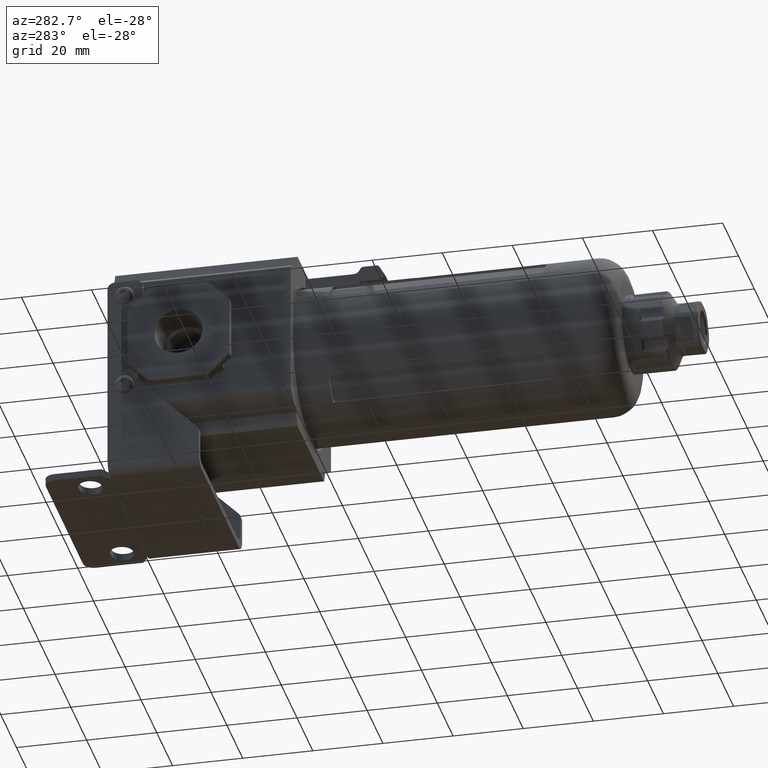
[diagram: clean part render]
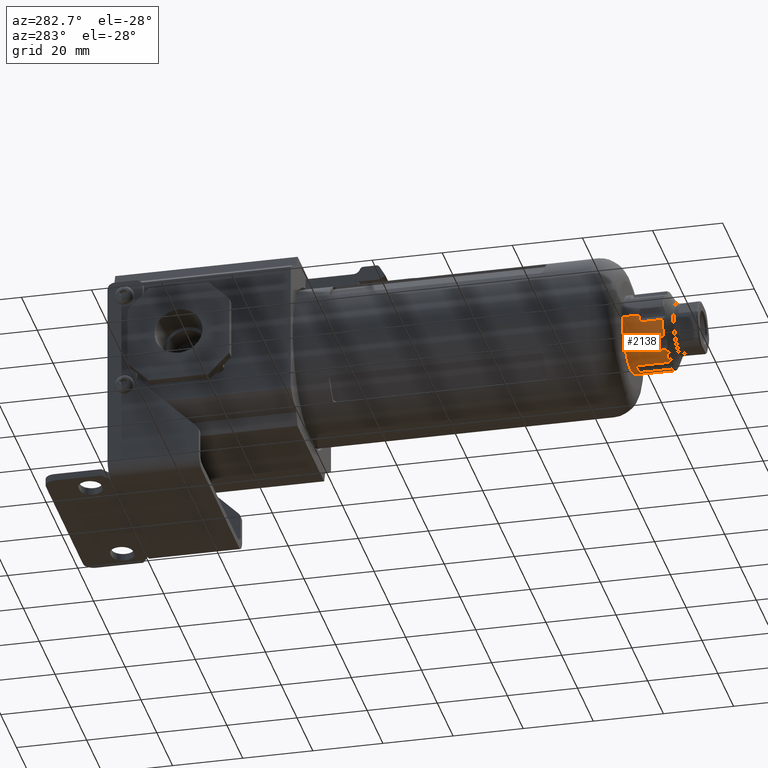
[diagram: same view with one face highlighted and labeled with its STEP entity id]
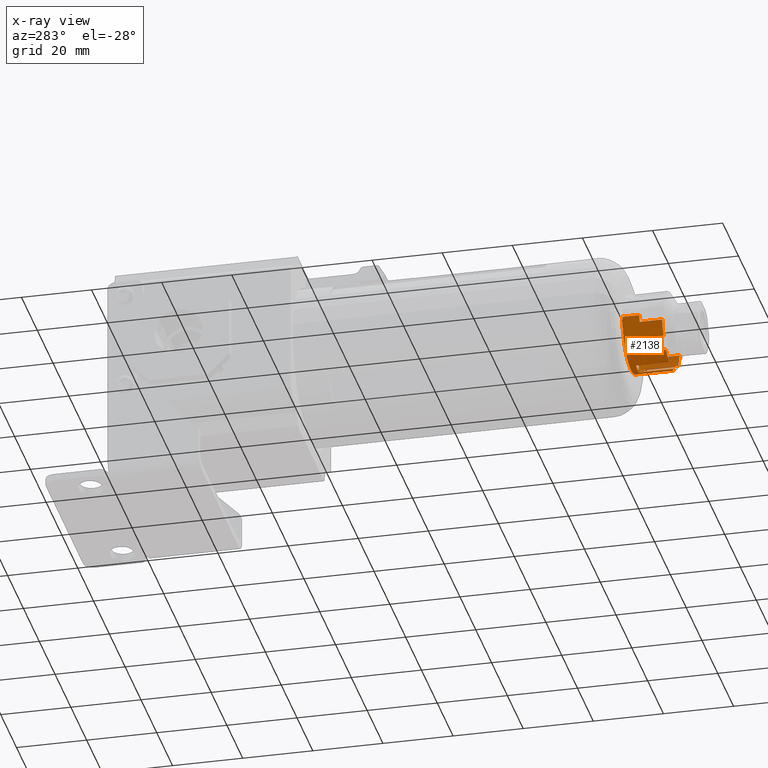
[diagram: x-ray of the same camera — body ghosted, the highlighted face saturated]
A machine part, auxiliary view. The second image highlights one B-rep face of the part: STEP entity #2138.
The next image is the same camera in x-ray: the body ghosted, the highlighted face saturated — about 0% of this face is hidden behind the body in this view.
In plain terms, the highlighted cylindrical surface (partial cylindrical patch) has radius 11.12 mm, axis along (-0, 1, 0).
Its self-contained STEP definition (entity closure, byte-faithful):
#53 = EDGE_CURVE ( 'NONE', #3982, #561, #631, .T. ) ;
#59 = VECTOR ( 'NONE', #7858, 1000.000000000000000 ) ;
#127 = ORIENTED_EDGE ( 'NONE', *, *, #9046, .T. ) ;
#156 = EDGE_CURVE ( 'NONE', #10337, #11940, #9162, .T. ) ;
#169 = CIRCLE ( 'NONE', #865, 11.11999999999999900 ) ;
#241 = EDGE_CURVE ( 'NONE', #2951, #8654, #5769, .T. ) ;
#269 = CARTESIAN_POINT ( 'NONE',  ( -11.11999999999998100, -127.2000000000000000, 0.0000000000000000000 ) ) ;
#280 = CARTESIAN_POINT ( 'NONE',  ( -2.052544532346916500, -124.2000000000000200, -10.92892771239397100 ) ) ;
#281 = DIRECTION ( 'NONE',  ( 1.000000000000000000, 0.0000000000000000000, 0.0000000000000000000 ) ) ;
#452 = CARTESIAN_POINT ( 'NONE',  ( 1.730641773680390700E-014, -127.1999999999999700, 0.0000000000000000000 ) ) ;
#481 = DIRECTION ( 'NONE',  ( -1.360567432138652400E-016, 1.000000000000000000, 0.0000000000000000000 ) ) ;
#540 = DIRECTION ( 'NONE',  ( -1.360567432138672300E-016, 1.000000000000000000, 0.0000000000000000000 ) ) ;
#561 = VERTEX_POINT ( 'NONE', #2896 ) ;
#573 = DIRECTION ( 'NONE',  ( -1.360567432138666200E-016, 1.000000000000000000, 0.0000000000000000000 ) ) ;
#631 = CIRCLE ( 'NONE', #6231, 11.11999999999999900 ) ;
#767 = CARTESIAN_POINT ( 'NONE',  ( -9.179287054041202200, -127.2000000000000000, -6.276550739021532300 ) ) ;
#802 = ORIENTED_EDGE ( 'NONE', *, *, #6599, .T. ) ;
#831 = EDGE_CURVE ( 'NONE', #12042, #11940, #169, .T. ) ;
#865 = AXIS2_PLACEMENT_3D ( 'NONE', #6842, #1221, #7777 ) ;
#1221 = DIRECTION ( 'NONE',  ( -6.802837160693361600E-017, 1.000000000000000000, 0.0000000000000000000 ) ) ;
#1401 = ORIENTED_EDGE ( 'NONE', *, *, #7861, .T. ) ;
#1482 = DIRECTION ( 'NONE',  ( -1.000000000000000000, 0.0000000000000000000, 0.0000000000000000000 ) ) ;
#1655 = VECTOR ( 'NONE', #6470, 1000.000000000000000 ) ;
#1658 = VERTEX_POINT ( 'NONE', #7301 ) ;
#1682 = AXIS2_PLACEMENT_3D ( 'NONE', #1908, #8489, #2863 ) ;
#1736 = ORIENTED_EDGE ( 'NONE', *, *, #6694, .T. ) ;
#1766 = CARTESIAN_POINT ( 'NONE',  ( -6.276550739021455900, -133.6693553667117000, -9.179287054041232400 ) ) ;
#1769 = CIRCLE ( 'NONE', #1682, 11.11999999999999900 ) ;
#1867 = CARTESIAN_POINT ( 'NONE',  ( 1.689824750716231000E-014, -124.2000000000000200, 0.0000000000000000000 ) ) ;
#1908 = CARTESIAN_POINT ( 'NONE',  ( 1.663973969505596400E-014, -122.3000000000000100, 0.0000000000000000000 ) ) ;
#2056 = CARTESIAN_POINT ( 'NONE',  ( 11.12000000000001700, -127.1999999999999700, 1.361807240651856700E-015 ) ) ;
#2125 = ORIENTED_EDGE ( 'NONE', *, *, #2591, .T. ) ;
#2138 = ADVANCED_FACE ( 'NONE', ( #10852 ), #7419, .T. ) ;
#2204 = DIRECTION ( 'NONE',  ( -6.802837160693361600E-017, 1.000000000000000000, 0.0000000000000000000 ) ) ;
#2277 = CARTESIAN_POINT ( 'NONE',  ( 6.276550739021563400, -124.1999999999999700, -9.179287054041180800 ) ) ;
#2315 = VERTEX_POINT ( 'NONE', #7599 ) ;
#2327 = VERTEX_POINT ( 'NONE', #8563 ) ;
#2395 = LINE ( 'NONE', #9584, #11836 ) ;
#2423 = CARTESIAN_POINT ( 'NONE',  ( 10.92892771239399300, -133.6693553667117000, -2.052544532346801900 ) ) ;
#2591 = EDGE_CURVE ( 'NONE', #4563, #2327, #7728, .T. ) ;
#2810 = DIRECTION ( 'NONE',  ( 1.000000000000000000, 0.0000000000000000000, 0.0000000000000000000 ) ) ;
#2863 = DIRECTION ( 'NONE',  ( -1.000000000000000000, 0.0000000000000000000, 0.0000000000000000000 ) ) ;
#2896 = CARTESIAN_POINT ( 'NONE',  ( 10.92892771239399300, -127.1999999999999700, -2.052544532346801900 ) ) ;
#2951 = VERTEX_POINT ( 'NONE', #767 ) ;
#2994 = DIRECTION ( 'NONE',  ( -1.360567432138666200E-016, 1.000000000000000000, 0.0000000000000000000 ) ) ;
#3041 = DIRECTION ( 'NONE',  ( -1.360567432138714000E-016, 1.000000000000000000, 0.0000000000000000000 ) ) ;
#3108 = VECTOR ( 'NONE', #12221, 1000.000000000000000 ) ;
#3137 = CIRCLE ( 'NONE', #6438, 11.11999999999999900 ) ;
#3165 = CIRCLE ( 'NONE', #11005, 11.11999999999999900 ) ;
#3197 = ORIENTED_EDGE ( 'NONE', *, *, #53, .T. ) ;
#3271 = VECTOR ( 'NONE', #5219, 1000.000000000000000 ) ;
#3290 = CARTESIAN_POINT ( 'NONE',  ( -6.276550739021455900, -127.2000000000000000, -9.179287054041232400 ) ) ;
#3304 = EDGE_CURVE ( 'NONE', #11257, #9175, #8281, .T. ) ;
#3408 = VECTOR ( 'NONE', #9707, 1000.000000000000000 ) ;
#3484 = AXIS2_PLACEMENT_3D ( 'NONE', #10873, #540, #1482 ) ;
#3570 = CARTESIAN_POINT ( 'NONE',  ( 1.818661715869186000E-014, -133.6693553667117000, 0.0000000000000000000 ) ) ;
#3584 = VERTEX_POINT ( 'NONE', #280 ) ;
#3623 = VERTEX_POINT ( 'NONE', #2277 ) ;
#3917 = EDGE_CURVE ( 'NONE', #1658, #5308, #2395, .T. ) ;
#3940 = DIRECTION ( 'NONE',  ( -0.0000000000000000000, -1.000000000000000000, -0.0000000000000000000 ) ) ;
#3982 = VERTEX_POINT ( 'NONE', #2056 ) ;
#4014 = EDGE_CURVE ( 'NONE', #3584, #12042, #10937, .T. ) ;
#4131 = DIRECTION ( 'NONE',  ( -0.0000000000000000000, -1.000000000000000000, -0.0000000000000000000 ) ) ;
#4181 = CIRCLE ( 'NONE', #9678, 11.11999999999999900 ) ;
#4197 = ORIENTED_EDGE ( 'NONE', *, *, #3917, .F. ) ;
#4220 = VERTEX_POINT ( 'NONE', #7175 ) ;
#4407 = CIRCLE ( 'NONE', #5273, 11.11999999999999900 ) ;
#4466 = LINE ( 'NONE', #9785, #6972 ) ;
#4508 = DIRECTION ( 'NONE',  ( -1.000000000000000000, 0.0000000000000000000, 0.0000000000000000000 ) ) ;
#4563 = VERTEX_POINT ( 'NONE', #269 ) ;
#4658 = ORIENTED_EDGE ( 'NONE', *, *, #7332, .T. ) ;
#4765 = CIRCLE ( 'NONE', #5088, 11.11999999999999900 ) ;
#4918 = EDGE_CURVE ( 'NONE', #6850, #2327, #1769, .T. ) ;
#5010 = AXIS2_PLACEMENT_3D ( 'NONE', #3570, #10151, #4508 ) ;
#5088 = AXIS2_PLACEMENT_3D ( 'NONE', #7826, #2204, #8791 ) ;
#5194 = CIRCLE ( 'NONE', #7050, 11.11999999999999900 ) ;
#5219 = DIRECTION ( 'NONE',  ( -0.0000000000000000000, -1.000000000000000000, -0.0000000000000000000 ) ) ;
#5233 = VECTOR ( 'NONE', #7716, 1000.000000000000000 ) ;
#5273 = AXIS2_PLACEMENT_3D ( 'NONE', #8673, #3041, #9636 ) ;
#5308 = VERTEX_POINT ( 'NONE', #5948 ) ;
#5356 = CARTESIAN_POINT ( 'NONE',  ( 2.052544532346880100, -127.7000000000000000, -10.92892771239397300 ) ) ;
#5386 = CARTESIAN_POINT ( 'NONE',  ( 1.818661715869186000E-014, -133.6693553667117000, 0.0000000000000000000 ) ) ;
#5593 = LINE ( 'NONE', #11290, #3108 ) ;
#5769 = LINE ( 'NONE', #8957, #3271 ) ;
#5885 = ORIENTED_EDGE ( 'NONE', *, *, #3304, .F. ) ;
#5926 = ORIENTED_EDGE ( 'NONE', *, *, #7240, .T. ) ;
#5948 = CARTESIAN_POINT ( 'NONE',  ( 9.179287054041276800, -133.6693553667117000, -6.276550739021437200 ) ) ;
#6007 = CARTESIAN_POINT ( 'NONE',  ( 6.276550739021563400, -127.7000000000000000, -9.179287054041180800 ) ) ;
#6134 = ORIENTED_EDGE ( 'NONE', *, *, #9929, .T. ) ;
#6209 = CARTESIAN_POINT ( 'NONE',  ( 1.730641773680391000E-014, -127.2000000000000000, 0.0000000000000000000 ) ) ;
#6231 = AXIS2_PLACEMENT_3D ( 'NONE', #452, #481, #281 ) ;
#6331 = DIRECTION ( 'NONE',  ( -1.000000000000000000, 0.0000000000000000000, 0.0000000000000000000 ) ) ;
#6432 = CARTESIAN_POINT ( 'NONE',  ( -6.276550739021463000, -127.7000000000000000, -9.179287054041243000 ) ) ;
#6438 = AXIS2_PLACEMENT_3D ( 'NONE', #5386, #11998, #6331 ) ;
#6470 = DIRECTION ( 'NONE',  ( -0.0000000000000000000, -1.000000000000000000, -0.0000000000000000000 ) ) ;
#6591 = CARTESIAN_POINT ( 'NONE',  ( -2.052544532346916500, -133.6693553667117000, -10.92892771239397100 ) ) ;
#6599 = EDGE_CURVE ( 'NONE', #4220, #4563, #3165, .T. ) ;
#6694 = EDGE_CURVE ( 'NONE', #8654, #8198, #4765, .T. ) ;
#6711 = EDGE_CURVE ( 'NONE', #4220, #8198, #4466, .T. ) ;
#6842 = CARTESIAN_POINT ( 'NONE',  ( 1.818661715869186000E-014, -133.6693553667117000, 0.0000000000000000000 ) ) ;
#6850 = VERTEX_POINT ( 'NONE', #10085 ) ;
#6972 = VECTOR ( 'NONE', #4131, 1000.000000000000000 ) ;
#7050 = AXIS2_PLACEMENT_3D ( 'NONE', #1867, #8436, #2810 ) ;
#7071 = ORIENTED_EDGE ( 'NONE', *, *, #4014, .T. ) ;
#7150 = DIRECTION ( 'NONE',  ( 1.000000000000000000, 0.0000000000000000000, -2.664535259100375700E-015 ) ) ;
#7151 = EDGE_CURVE ( 'NONE', #3623, #2315, #7545, .T. ) ;
#7175 = CARTESIAN_POINT ( 'NONE',  ( -10.92892771239394600, -127.2000000000000000, -2.052544532346914300 ) ) ;
#7240 = EDGE_CURVE ( 'NONE', #10337, #2951, #4181, .T. ) ;
#7253 = ORIENTED_EDGE ( 'NONE', *, *, #7151, .T. ) ;
#7301 = CARTESIAN_POINT ( 'NONE',  ( 9.179287054041276800, -124.1999999999999700, -6.276550739021437200 ) ) ;
#7332 = EDGE_CURVE ( 'NONE', #9221, #5308, #10525, .T. ) ;
#7419 = CYLINDRICAL_SURFACE ( 'NONE', #3484, 11.11999999999999900 ) ;
#7545 = LINE ( 'NONE', #6007, #59 ) ;
#7599 = CARTESIAN_POINT ( 'NONE',  ( 6.276550739021563400, -133.6693553667117000, -9.179287054041180800 ) ) ;
#7716 = DIRECTION ( 'NONE',  ( -1.360567432138672300E-016, 1.000000000000000000, 0.0000000000000000000 ) ) ;
#7728 = LINE ( 'NONE', #11485, #5233 ) ;
#7729 = CARTESIAN_POINT ( 'NONE',  ( 10.92892771239399300, -127.7000000000000000, -2.052544532346801900 ) ) ;
#7777 = DIRECTION ( 'NONE',  ( -1.000000000000000000, 0.0000000000000000000, 0.0000000000000000000 ) ) ;
#7826 = CARTESIAN_POINT ( 'NONE',  ( 1.818661715869186000E-014, -133.6693553667117000, 0.0000000000000000000 ) ) ;
#7858 = DIRECTION ( 'NONE',  ( -0.0000000000000000000, -1.000000000000000000, -0.0000000000000000000 ) ) ;
#7861 = EDGE_CURVE ( 'NONE', #11257, #3584, #5194, .T. ) ;
#7935 = ORIENTED_EDGE ( 'NONE', *, *, #831, .T. ) ;
#7985 = ORIENTED_EDGE ( 'NONE', *, *, #11024, .T. ) ;
#8072 = CARTESIAN_POINT ( 'NONE',  ( 2.052544532346880100, -124.2000000000000200, -10.92892771239397300 ) ) ;
#8198 = VERTEX_POINT ( 'NONE', #8948 ) ;
#8281 = LINE ( 'NONE', #5356, #10197 ) ;
#8436 = DIRECTION ( 'NONE',  ( -1.360567432138703900E-016, 1.000000000000000000, 0.0000000000000000000 ) ) ;
#8489 = DIRECTION ( 'NONE',  ( -1.360567432138672300E-016, 1.000000000000000000, 0.0000000000000000000 ) ) ;
#8563 = CARTESIAN_POINT ( 'NONE',  ( -11.11999999999998100, -122.3000000000000100, 0.0000000000000000000 ) ) ;
#8628 = CARTESIAN_POINT ( 'NONE',  ( 1.730641773680391000E-014, -127.2000000000000000, 0.0000000000000000000 ) ) ;
#8654 = VERTEX_POINT ( 'NONE', #9927 ) ;
#8673 = CARTESIAN_POINT ( 'NONE',  ( 1.689824750716230400E-014, -124.1999999999999700, 0.0000000000000000000 ) ) ;
#8767 = CARTESIAN_POINT ( 'NONE',  ( -2.052544532346916500, -127.7000000000000000, -10.92892771239397100 ) ) ;
#8791 = DIRECTION ( 'NONE',  ( -1.000000000000000000, 0.0000000000000000000, 0.0000000000000000000 ) ) ;
#8948 = CARTESIAN_POINT ( 'NONE',  ( -10.92892771239394800, -133.6693553667117000, -2.052544532346914700 ) ) ;
#8957 = CARTESIAN_POINT ( 'NONE',  ( -9.179287054041202200, -127.7000000000000000, -6.276550739021532300 ) ) ;
#9046 = EDGE_CURVE ( 'NONE', #561, #9221, #10907, .T. ) ;
#9162 = LINE ( 'NONE', #6432, #1655 ) ;
#9175 = VERTEX_POINT ( 'NONE', #9874 ) ;
#9221 = VERTEX_POINT ( 'NONE', #2423 ) ;
#9524 = ORIENTED_EDGE ( 'NONE', *, *, #241, .T. ) ;
#9564 = DIRECTION ( 'NONE',  ( 1.000000000000000000, 0.0000000000000000000, 7.105427357601001900E-015 ) ) ;
#9584 = CARTESIAN_POINT ( 'NONE',  ( 9.179287054041266100, -127.7000000000000000, -6.276550739021430100 ) ) ;
#9636 = DIRECTION ( 'NONE',  ( 1.000000000000000000, 0.0000000000000000000, 0.0000000000000000000 ) ) ;
#9678 = AXIS2_PLACEMENT_3D ( 'NONE', #6209, #573, #7150 ) ;
#9707 = DIRECTION ( 'NONE',  ( -0.0000000000000000000, -1.000000000000000000, -0.0000000000000000000 ) ) ;
#9785 = CARTESIAN_POINT ( 'NONE',  ( -10.92892771239396600, -127.7000000000000000, -2.052544532346918200 ) ) ;
#9835 = EDGE_LOOP ( 'NONE', ( #11838, #3197, #127, #4658, #4197, #7985, #7253, #6134, #5885, #1401, #7071, #7935, #11082, #5926, #9524, #1736, #11017, #802, #2125, #11414 ) ) ;
#9874 = CARTESIAN_POINT ( 'NONE',  ( 2.052544532346880500, -133.6693553667117000, -10.92892771239397500 ) ) ;
#9927 = CARTESIAN_POINT ( 'NONE',  ( -9.179287054041202200, -133.6693553667117000, -6.276550739021532300 ) ) ;
#9929 = EDGE_CURVE ( 'NONE', #2315, #9175, #3137, .T. ) ;
#10042 = DIRECTION ( 'NONE',  ( -0.0000000000000000000, -1.000000000000000000, -0.0000000000000000000 ) ) ;
#10085 = CARTESIAN_POINT ( 'NONE',  ( 11.12000000000001700, -122.3000000000000100, 1.361807240651856700E-015 ) ) ;
#10151 = DIRECTION ( 'NONE',  ( -6.802837160693361600E-017, 1.000000000000000000, 0.0000000000000000000 ) ) ;
#10197 = VECTOR ( 'NONE', #10042, 1000.000000000000000 ) ;
#10337 = VERTEX_POINT ( 'NONE', #3290 ) ;
#10525 = CIRCLE ( 'NONE', #5010, 11.11999999999999900 ) ;
#10625 = VECTOR ( 'NONE', #11502, 1000.000000000000000 ) ;
#10852 = FACE_OUTER_BOUND ( 'NONE', #9835, .T. ) ;
#10873 = CARTESIAN_POINT ( 'NONE',  ( 1.945611427958301300E-014, -143.0000000000000300, 0.0000000000000000000 ) ) ;
#10907 = LINE ( 'NONE', #7729, #10625 ) ;
#10926 = EDGE_CURVE ( 'NONE', #3982, #6850, #5593, .T. ) ;
#10937 = LINE ( 'NONE', #8767, #3408 ) ;
#11005 = AXIS2_PLACEMENT_3D ( 'NONE', #8628, #2994, #9564 ) ;
#11017 = ORIENTED_EDGE ( 'NONE', *, *, #6711, .F. ) ;
#11024 = EDGE_CURVE ( 'NONE', #1658, #3623, #4407, .T. ) ;
#11082 = ORIENTED_EDGE ( 'NONE', *, *, #156, .F. ) ;
#11257 = VERTEX_POINT ( 'NONE', #8072 ) ;
#11290 = CARTESIAN_POINT ( 'NONE',  ( 11.12000000000001900, -143.0000000000000300, 1.361807240651856700E-015 ) ) ;
#11414 = ORIENTED_EDGE ( 'NONE', *, *, #4918, .F. ) ;
#11485 = CARTESIAN_POINT ( 'NONE',  ( -11.11999999999998100, -143.0000000000000300, 0.0000000000000000000 ) ) ;
#11502 = DIRECTION ( 'NONE',  ( 0.0000000000000000000, -1.000000000000000000, -0.0000000000000000000 ) ) ;
#11836 = VECTOR ( 'NONE', #3940, 1000.000000000000000 ) ;
#11838 = ORIENTED_EDGE ( 'NONE', *, *, #10926, .F. ) ;
#11940 = VERTEX_POINT ( 'NONE', #1766 ) ;
#11998 = DIRECTION ( 'NONE',  ( -6.802837160693361600E-017, 1.000000000000000000, 0.0000000000000000000 ) ) ;
#12042 = VERTEX_POINT ( 'NONE', #6591 ) ;
#12221 = DIRECTION ( 'NONE',  ( -1.360567432138672300E-016, 1.000000000000000000, 0.0000000000000000000 ) ) ;